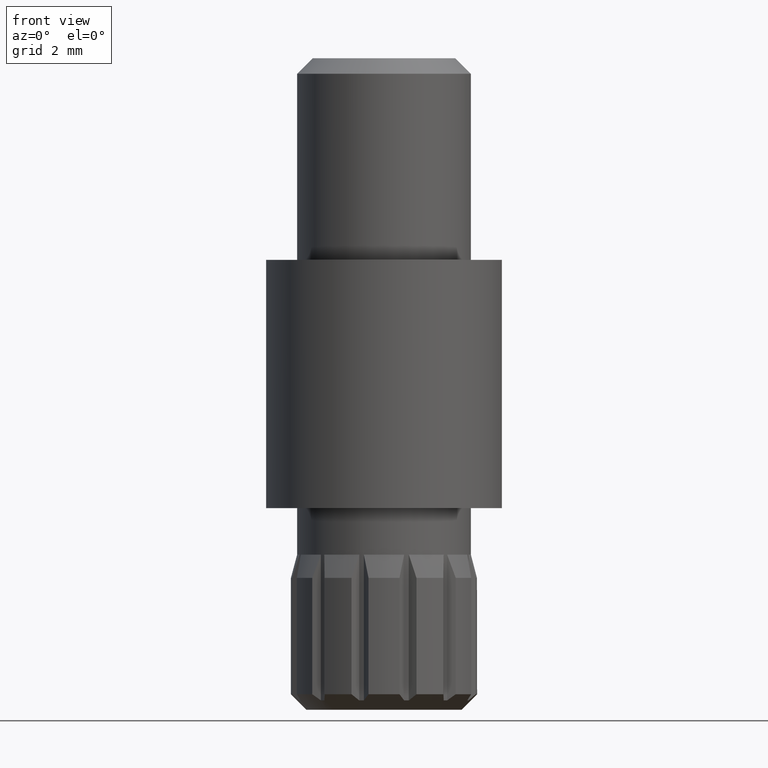
[diagram: clean part render]
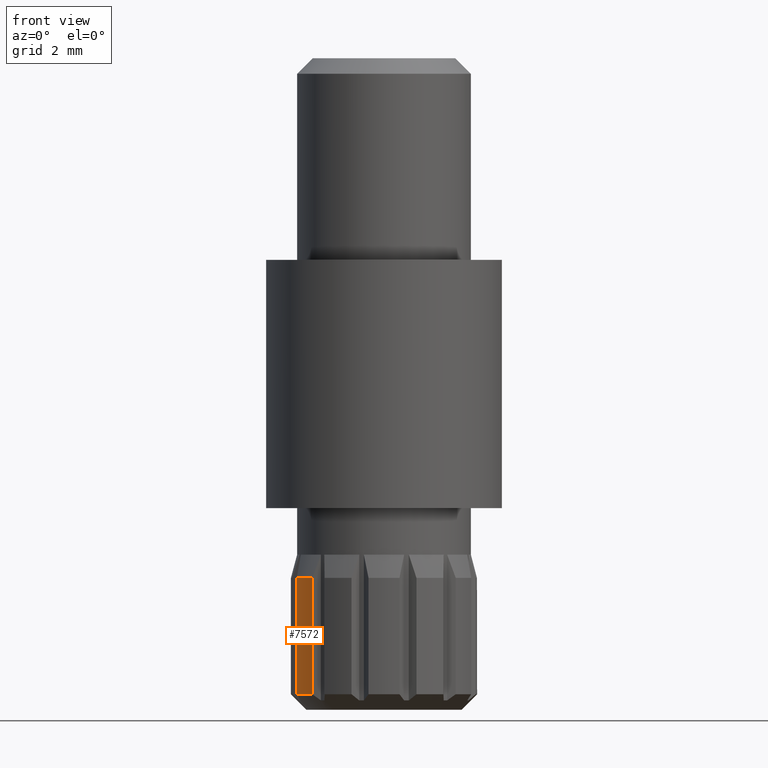
[diagram: same view with one face highlighted and labeled with its STEP entity id]
A machine part, front view. The second image highlights one B-rep face of the part: STEP entity #7572.
In plain terms, the highlighted cylindrical surface (partial cylindrical patch) has radius 3 mm, axis along (0, 0, -1).
Its self-contained STEP definition (entity closure, byte-faithful):
#140 = CARTESIAN_POINT ( 'NONE',  ( -2.811737691489909700, -1.046007243882658600, 5.000000000000000000 ) ) ;
#360 = ORIENTED_EDGE ( 'NONE', *, *, #1313, .T. ) ;
#831 = AXIS2_PLACEMENT_3D ( 'NONE', #8887, #7872, #2806 ) ;
#1313 = EDGE_CURVE ( 'NONE', #9840, #11848, #12413, .T. ) ;
#1890 = VECTOR ( 'NONE', #6245, 1000.000000000000000 ) ;
#2521 = VERTEX_POINT ( 'NONE', #10724 ) ;
#2806 = DIRECTION ( 'NONE',  ( -1.000000000000000000, 0.0000000000000000000, 0.0000000000000000000 ) ) ;
#2845 = FACE_OUTER_BOUND ( 'NONE', #3532, .T. ) ;
#2951 = CARTESIAN_POINT ( 'NONE',  ( 0.0000000000000000000, 0.0000000000000000000, 4.250000000000000000 ) ) ;
#3452 = DIRECTION ( 'NONE',  ( 0.0000000000000000000, 0.0000000000000000000, -1.000000000000000000 ) ) ;
#3510 = EDGE_CURVE ( 'NONE', #2521, #9840, #12477, .T. ) ;
#3532 = EDGE_LOOP ( 'NONE', ( #6419, #360, #7055, #8310 ) ) ;
#3985 = DIRECTION ( 'NONE',  ( -1.000000000000000000, 0.0000000000000000000, 0.0000000000000000000 ) ) ;
#4152 = LINE ( 'NONE', #10505, #8888 ) ;
#4346 = AXIS2_PLACEMENT_3D ( 'NONE', #5990, #13112, #7015 ) ;
#5416 = CARTESIAN_POINT ( 'NONE',  ( -2.811737691489909700, -1.046007243882658600, 0.4999999999999998900 ) ) ;
#5918 = CARTESIAN_POINT ( 'NONE',  ( -2.811737691489910600, -1.046007243882659100, 4.250000000000000000 ) ) ;
#5990 = CARTESIAN_POINT ( 'NONE',  ( 0.0000000000000000000, 0.0000000000000000000, 0.4999999999999998900 ) ) ;
#6245 = DIRECTION ( 'NONE',  ( 0.0000000000000000000, 0.0000000000000000000, -1.000000000000000000 ) ) ;
#6419 = ORIENTED_EDGE ( 'NONE', *, *, #3510, .T. ) ;
#6436 = EDGE_CURVE ( 'NONE', #9226, #11848, #10100, .T. ) ;
#6685 = CARTESIAN_POINT ( 'NONE',  ( -2.311737691489917300, -1.912032647667102100, 0.4999999999999998900 ) ) ;
#7015 = DIRECTION ( 'NONE',  ( -1.000000000000000000, 0.0000000000000000000, 0.0000000000000000000 ) ) ;
#7055 = ORIENTED_EDGE ( 'NONE', *, *, #6436, .F. ) ;
#7572 = ADVANCED_FACE ( 'NONE', ( #2845 ), #10646, .T. ) ;
#7872 = DIRECTION ( 'NONE',  ( 0.0000000000000000000, 0.0000000000000000000, -1.000000000000000000 ) ) ;
#8310 = ORIENTED_EDGE ( 'NONE', *, *, #12307, .F. ) ;
#8887 = CARTESIAN_POINT ( 'NONE',  ( 0.0000000000000000000, 0.0000000000000000000, 5.000000000000000000 ) ) ;
#8888 = VECTOR ( 'NONE', #3452, 1000.000000000000000 ) ;
#9226 = VERTEX_POINT ( 'NONE', #6685 ) ;
#9840 = VERTEX_POINT ( 'NONE', #5918 ) ;
#10069 = DIRECTION ( 'NONE',  ( -0.0000000000000000000, -0.0000000000000000000, -1.000000000000000000 ) ) ;
#10100 = CIRCLE ( 'NONE', #4346, 3.000000000000000000 ) ;
#10505 = CARTESIAN_POINT ( 'NONE',  ( -2.311737691489917700, -1.912032647667101900, 5.000000000000000000 ) ) ;
#10646 = CYLINDRICAL_SURFACE ( 'NONE', #831, 3.000000000000000400 ) ;
#10724 = CARTESIAN_POINT ( 'NONE',  ( -2.311737691489918600, -1.912032647667102100, 4.250000000000000000 ) ) ;
#11328 = AXIS2_PLACEMENT_3D ( 'NONE', #2951, #10069, #3985 ) ;
#11848 = VERTEX_POINT ( 'NONE', #5416 ) ;
#12307 = EDGE_CURVE ( 'NONE', #2521, #9226, #4152, .T. ) ;
#12413 = LINE ( 'NONE', #140, #1890 ) ;
#12477 = CIRCLE ( 'NONE', #11328, 3.000000000000000900 ) ;
#13112 = DIRECTION ( 'NONE',  ( -0.0000000000000000000, -0.0000000000000000000, -1.000000000000000000 ) ) ;